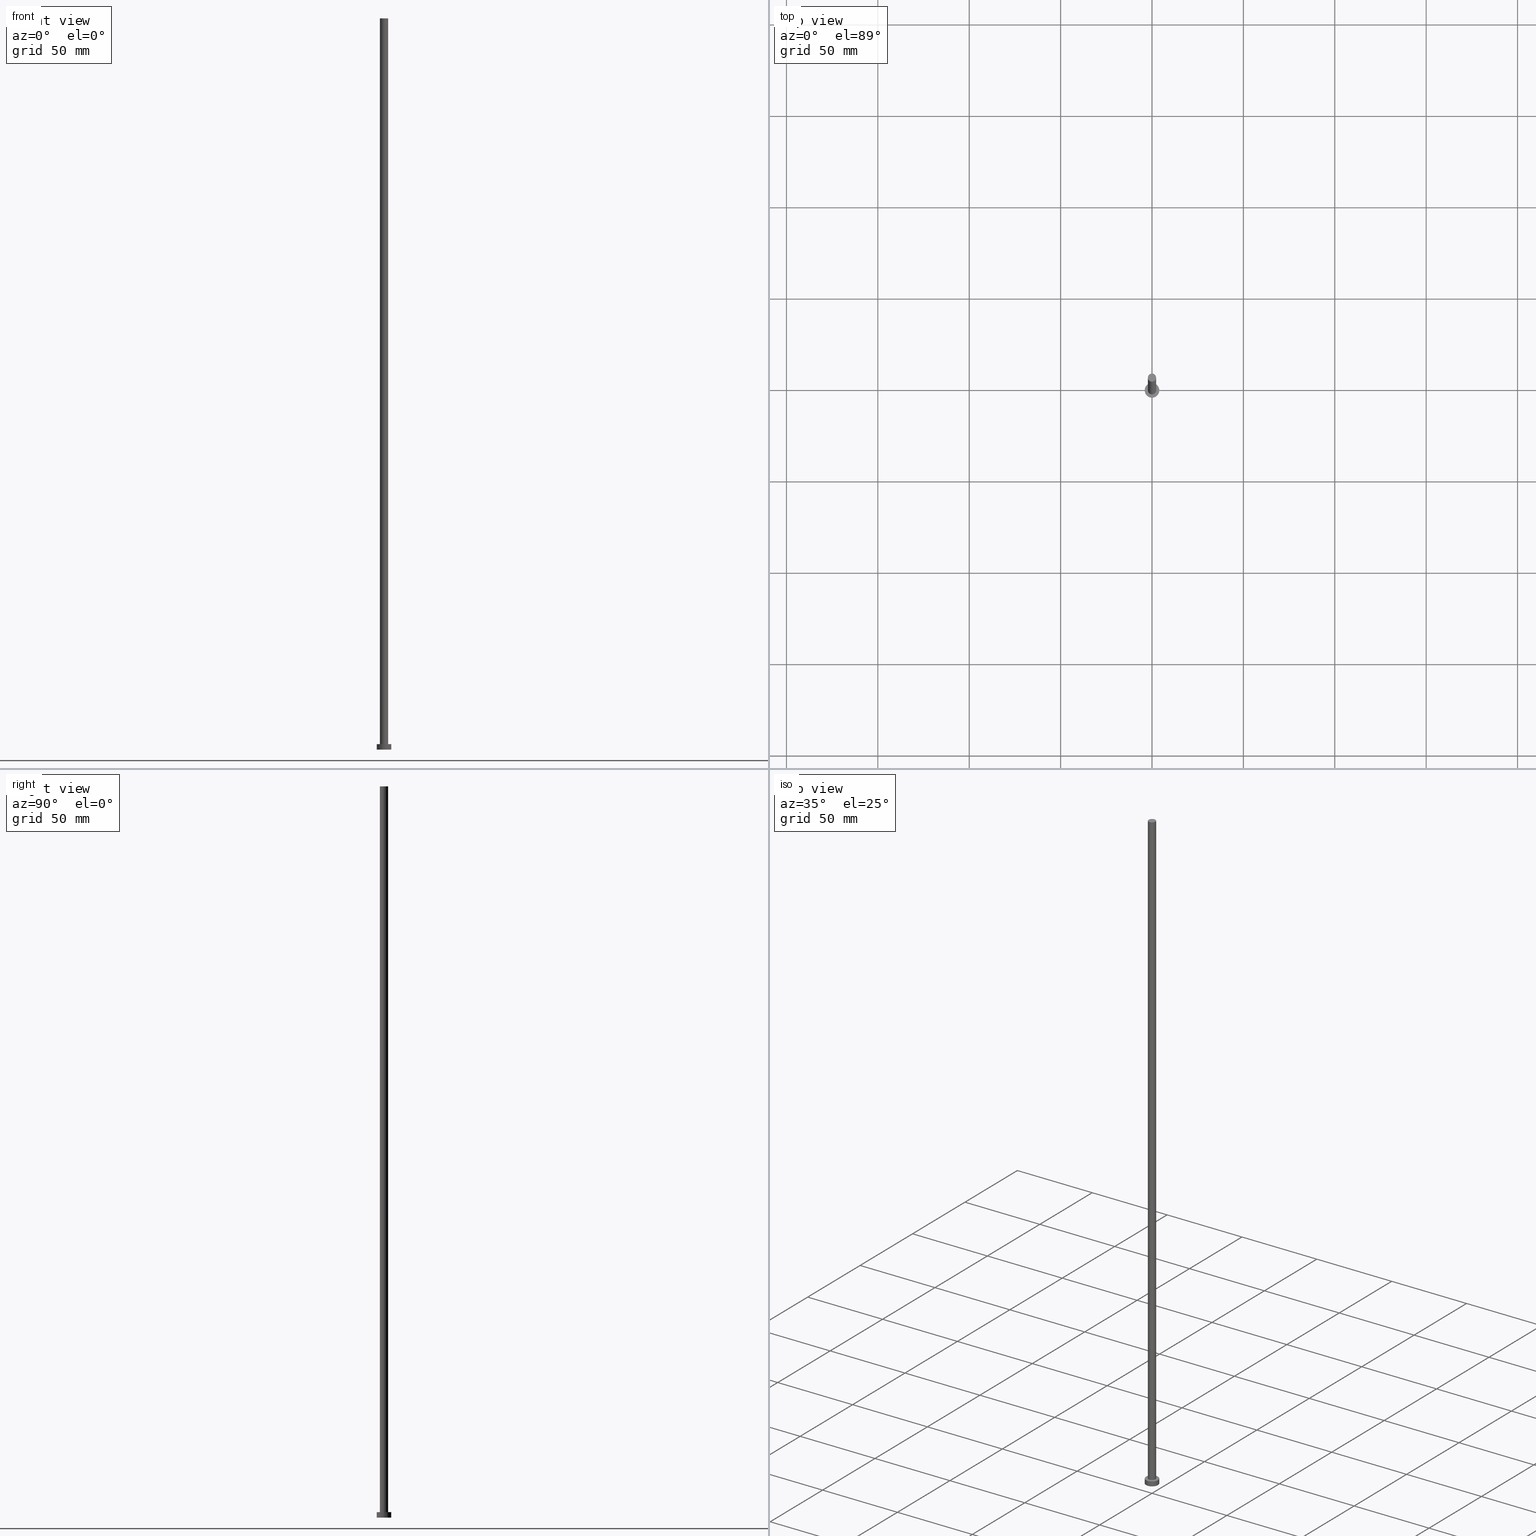
[diagram: canonical four-view strip — front | top / right | iso, engineering-drawing reading convention]
A machine part, canonical four-view strip (front | top / right | iso — engineering-drawing reading convention). The complete STEP part file that produces these views, byte-faithful:
ISO-10303-21;
HEADER;
FILE_DESCRIPTION (( 'STEP AP203' ),
    '1' );
FILE_NAME ('6d35.STEP',
    '2023-02-12T11:52:34',
    ( '' ),
    ( '' ),
    'SwSTEP 2.0',
    'SolidWorks 2019',
    '' );
FILE_SCHEMA (( 'CONFIG_CONTROL_DESIGN' ));
ENDSEC;

DATA;
#1 = DIRECTION ( 'NONE',  ( 1.000000000000000000, 0.000000000000000000, 0.000000000000000000 ) ) ;
#2 = DIRECTION ( 'NONE',  ( -0.000000000000000000, -0.000000000000000000, -1.000000000000000000 ) ) ;
#3 = CARTESIAN_POINT ( 'NONE',  ( 0.000000000000000000, 0.000000000000000000, 3.000000000000000000 ) ) ;
#4 = ORIENTED_EDGE ( 'NONE', *, *, #128, .T. ) ;
#5 = DIRECTION ( 'NONE',  ( 0.000000000000000000, 0.000000000000000000, 1.000000000000000000 ) ) ;
#6 = APPROVAL ( #31, 'NEUR�EN�' ) ;
#7 = ORIENTED_EDGE ( 'NONE', *, *, #54, .T. ) ;
#8 = CIRCLE ( 'NONE', #166, 4.000000000000000000 ) ;
#9 = FACE_OUTER_BOUND ( 'NONE', #85, .T. ) ;
#10 = CIRCLE ( 'NONE', #78, 2.250000000000000000 ) ;
#11 = ORGANIZATION ( 'NEUR�EN�', 'NEUR�EN�', '' ) ;
#12 = COORDINATED_UNIVERSAL_TIME_OFFSET ( 1, 0, .AHEAD. ) ;
#13 = DATE_TIME_ROLE ( 'creation_date' ) ;
#14 = SECURITY_CLASSIFICATION ( '', '', #94 ) ;
#15 = PERSON_AND_ORGANIZATION ( #72, #11 ) ;
#16 = ORIENTED_EDGE ( 'NONE', *, *, #195, .T. ) ;
#17 = FACE_OUTER_BOUND ( 'NONE', #123, .T. ) ;
#18 = VECTOR ( 'NONE', #199, 1000.000000000000000 ) ;
#19 = DIRECTION ( 'NONE',  ( 0.000000000000000000, 0.000000000000000000, 1.000000000000000000 ) ) ;
#20 = EDGE_LOOP ( 'NONE', ( #221, #233, #127, #47 ) ) ;
#21 = DIRECTION ( 'NONE',  ( 0.000000000000000000, 0.000000000000000000, 1.000000000000000000 ) ) ;
#22 = ORIENTED_EDGE ( 'NONE', *, *, #66, .F. ) ;
#23 =( GEOMETRIC_REPRESENTATION_CONTEXT ( 3 ) GLOBAL_UNCERTAINTY_ASSIGNED_CONTEXT ( ( #174 ) ) GLOBAL_UNIT_ASSIGNED_CONTEXT ( ( #242, #73, #151 ) ) REPRESENTATION_CONTEXT ( 'NONE', 'WORKASPACE' ) );
#24 = CARTESIAN_POINT ( 'NONE',  ( 0.000000000000000000, 0.000000000000000000, 0.000000000000000000 ) ) ;
#25 = PRODUCT_DEFINITION ( 'NEZN�M�', '', #28, #134 ) ;
#26 = PERSON_AND_ORGANIZATION ( #72, #11 ) ;
#27 = EDGE_LOOP ( 'NONE', ( #106, #185 ) ) ;
#28 = PRODUCT_DEFINITION_FORMATION_WITH_SPECIFIED_SOURCE ( 'LIBOVOLN�', '', #57, .NOT_KNOWN. ) ;
#29 = PRODUCT_RELATED_PRODUCT_CATEGORY ( 'detail', '', ( #57 ) ) ;
#30 = PERSON_AND_ORGANIZATION ( #72, #11 ) ;
#31 = APPROVAL_STATUS ( 'not_yet_approved' ) ;
#32 = CC_DESIGN_DATE_AND_TIME_ASSIGNMENT ( #132, #13, ( #25 ) ) ;
#33 = AXIS2_PLACEMENT_3D ( 'NONE', #24, #101, #45 ) ;
#34 = APPROVAL_ROLE ( '' ) ;
#35 = PERSON_AND_ORGANIZATION ( #72, #11 ) ;
#36 = APPLICATION_CONTEXT ( 'configuration controlled 3d designs of mechanical parts and assemblies' ) ;
#37 = ORIENTED_EDGE ( 'NONE', *, *, #54, .F. ) ;
#38 = FACE_OUTER_BOUND ( 'NONE', #86, .T. ) ;
#39 = VERTEX_POINT ( 'NONE', #146 ) ;
#40 = CARTESIAN_POINT ( 'NONE',  ( 0.000000000000000000, 0.000000000000000000, 400.0000000000000000 ) ) ;
#41 = VERTEX_POINT ( 'NONE', #201 ) ;
#42 = DIRECTION ( 'NONE',  ( 0.000000000000000000, 0.000000000000000000, 1.000000000000000000 ) ) ;
#43 = CARTESIAN_POINT ( 'NONE',  ( 2.250000000000000000, 2.755455298081544285E-16, 400.0000000000000000 ) ) ;
#44 = CARTESIAN_POINT ( 'NONE',  ( 4.000000000000000000, 4.898587196589412829E-16, 3.000000000000000000 ) ) ;
#45 = DIRECTION ( 'NONE',  ( 1.000000000000000000, 0.000000000000000000, 0.000000000000000000 ) ) ;
#46 = EDGE_CURVE ( 'NONE', #39, #67, #219, .T. ) ;
#47 = ORIENTED_EDGE ( 'NONE', *, *, #117, .F. ) ;
#48 = CARTESIAN_POINT ( 'NONE',  ( 0.000000000000000000, 0.000000000000000000, 0.000000000000000000 ) ) ;
#49 = EDGE_CURVE ( 'NONE', #240, #212, #246, .T. ) ;
#50 = CC_DESIGN_PERSON_AND_ORGANIZATION_ASSIGNMENT ( #206, #135, ( #28 ) ) ;
#51 = PERSON_AND_ORGANIZATION ( #72, #11 ) ;
#52 = VECTOR ( 'NONE', #120, 1000.000000000000000 ) ;
#53 = APPLICATION_CONTEXT ( 'configuration controlled 3d designs of mechanical parts and assemblies' ) ;
#54 = EDGE_CURVE ( 'NONE', #67, #41, #184, .T. ) ;
#55 = CALENDAR_DATE ( 2023, 12, 2 ) ;
#56 = APPROVAL_ROLE ( '' ) ;
#57 = PRODUCT ( '6d35', '6d35', '', ( #124 ) ) ;
#58 = COORDINATED_UNIVERSAL_TIME_OFFSET ( 1, 0, .AHEAD. ) ;
#59 = CIRCLE ( 'NONE', #245, 4.000000000000000000 ) ;
#60 = EDGE_LOOP ( 'NONE', ( #125, #176, #95, #62 ) ) ;
#61 = DIRECTION ( 'NONE',  ( -0.000000000000000000, -0.000000000000000000, -1.000000000000000000 ) ) ;
#62 = ORIENTED_EDGE ( 'NONE', *, *, #49, .T. ) ;
#63 = CARTESIAN_POINT ( 'NONE',  ( 2.250000000000000000, 2.755455298081544285E-16, 400.0000000000000000 ) ) ;
#64 = ORIENTED_EDGE ( 'NONE', *, *, #46, .F. ) ;
#65 = AXIS2_PLACEMENT_3D ( 'NONE', #144, #79, #179 ) ;
#66 = EDGE_CURVE ( 'NONE', #251, #41, #104, .T. ) ;
#67 = VERTEX_POINT ( 'NONE', #149 ) ;
#68 = CARTESIAN_POINT ( 'NONE',  ( 0.000000000000000000, 0.000000000000000000, 3.000000000000000000 ) ) ;
#69 = DIRECTION ( 'NONE',  ( 1.000000000000000000, 0.000000000000000000, 0.000000000000000000 ) ) ;
#70 = EDGE_CURVE ( 'NONE', #165, #147, #116, .T. ) ;
#71 = CARTESIAN_POINT ( 'NONE',  ( 0.000000000000000000, 0.000000000000000000, 3.000000000000000000 ) ) ;
#72 = PERSON ( 'NEUR�EN�', 'NEUR�EN�', 'NEUR�EN�', ('NEUR�EN�'), ('NEUR�EN�'), ('NEUR�EN�') ) ;
#73 =( NAMED_UNIT ( * ) PLANE_ANGLE_UNIT ( ) SI_UNIT ( $, .RADIAN. ) );
#74 = COORDINATED_UNIVERSAL_TIME_OFFSET ( 1, 0, .AHEAD. ) ;
#75 = CC_DESIGN_PERSON_AND_ORGANIZATION_ASSIGNMENT ( #148, #126, ( #57 ) ) ;
#76 = APPROVAL_STATUS ( 'not_yet_approved' ) ;
#77 = AXIS2_PLACEMENT_3D ( 'NONE', #217, #196, #198 ) ;
#78 = AXIS2_PLACEMENT_3D ( 'NONE', #160, #42, #96 ) ;
#79 = DIRECTION ( 'NONE',  ( -0.000000000000000000, -0.000000000000000000, -1.000000000000000000 ) ) ;
#80 = FACE_OUTER_BOUND ( 'NONE', #60, .T. ) ;
#81 = ADVANCED_FACE ( 'NONE', ( #84 ), #248, .T. ) ;
#82 = DIRECTION ( 'NONE',  ( 0.000000000000000000, 0.000000000000000000, 1.000000000000000000 ) ) ;
#83 = CARTESIAN_POINT ( 'NONE',  ( -2.250000000000000000, 0.000000000000000000, 400.0000000000000000 ) ) ;
#84 = FACE_OUTER_BOUND ( 'NONE', #20, .T. ) ;
#85 = EDGE_LOOP ( 'NONE', ( #99, #186, #7, #22 ) ) ;
#86 = EDGE_LOOP ( 'NONE', ( #64, #161, #214, #178 ) ) ;
#87 = CYLINDRICAL_SURFACE ( 'NONE', #194, 4.000000000000000000 ) ;
#88 = AXIS2_PLACEMENT_3D ( 'NONE', #223, #142, #175 ) ;
#89 = DIRECTION ( 'NONE',  ( -1.000000000000000000, 0.000000000000000000, 0.000000000000000000 ) ) ;
#90 = DATE_AND_TIME ( #91, #216 ) ;
#91 = CALENDAR_DATE ( 2023, 12, 2 ) ;
#92 = ADVANCED_FACE ( 'NONE', ( #237, #234 ), #159, .T. ) ;
#93 = APPROVAL_DATE_TIME ( #173, #131 ) ;
#94 = SECURITY_CLASSIFICATION_LEVEL ( 'unclassified' ) ;
#95 = ORIENTED_EDGE ( 'NONE', *, *, #117, .T. ) ;
#96 = DIRECTION ( 'NONE',  ( 1.000000000000000000, 0.000000000000000000, 0.000000000000000000 ) ) ;
#97 = AXIS2_PLACEMENT_3D ( 'NONE', #232, #82, #100 ) ;
#98 = CARTESIAN_POINT ( 'NONE',  ( 0.000000000000000000, 0.000000000000000000, 0.000000000000000000 ) ) ;
#99 = ORIENTED_EDGE ( 'NONE', *, *, #195, .F. ) ;
#100 = DIRECTION ( 'NONE',  ( 1.000000000000000000, 0.000000000000000000, -0.000000000000000000 ) ) ;
#101 = DIRECTION ( 'NONE',  ( 0.000000000000000000, 0.000000000000000000, 1.000000000000000000 ) ) ;
#102 = CC_DESIGN_DATE_AND_TIME_ASSIGNMENT ( #90, #229, ( #14 ) ) ;
#103 = ADVANCED_BREP_SHAPE_REPRESENTATION ( '6d35', ( #226, #200 ), #23 ) ;
#104 = LINE ( 'NONE', #183, #180 ) ;
#105 = CARTESIAN_POINT ( 'NONE',  ( -4.000000000000000000, 0.000000000000000000, 3.000000000000000000 ) ) ;
#106 = ORIENTED_EDGE ( 'NONE', *, *, #49, .F. ) ;
#107 = DIRECTION ( 'NONE',  ( -0.000000000000000000, -0.000000000000000000, -1.000000000000000000 ) ) ;
#108 = LOCAL_TIME ( 12, 52, 34.00000000000000000, #58 ) ;
#109 = DIRECTION ( 'NONE',  ( -0.000000000000000000, -0.000000000000000000, -1.000000000000000000 ) ) ;
#110 = AXIS2_PLACEMENT_3D ( 'NONE', #177, #21, #121 ) ;
#111 = ADVANCED_FACE ( 'NONE', ( #80 ), #163, .T. ) ;
#112 = PERSON_AND_ORGANIZATION_ROLE ( 'creator' ) ;
#113 = AXIS2_PLACEMENT_3D ( 'NONE', #71, #109, #89 ) ;
#114 = CIRCLE ( 'NONE', #77, 4.000000000000000000 ) ;
#115 = DIRECTION ( 'NONE',  ( 0.000000000000000000, 0.000000000000000000, 1.000000000000000000 ) ) ;
#116 = CIRCLE ( 'NONE', #88, 2.250000000000000000 ) ;
#117 = EDGE_CURVE ( 'NONE', #165, #240, #137, .T. ) ;
#118 = CYLINDRICAL_SURFACE ( 'NONE', #113, 4.000000000000000000 ) ;
#119 = LOCAL_TIME ( 12, 52, 34.00000000000000000, #154 ) ;
#120 = DIRECTION ( 'NONE',  ( -0.000000000000000000, -0.000000000000000000, -1.000000000000000000 ) ) ;
#121 = DIRECTION ( 'NONE',  ( 1.000000000000000000, 0.000000000000000000, -0.000000000000000000 ) ) ;
#122 = CC_DESIGN_PERSON_AND_ORGANIZATION_ASSIGNMENT ( #209, #171, ( #28 ) ) ;
#123 = EDGE_LOOP ( 'NONE', ( #138, #37 ) ) ;
#124 = MECHANICAL_CONTEXT ( 'NONE', #36, 'mechanical' ) ;
#125 = ORIENTED_EDGE ( 'NONE', *, *, #190, .F. ) ;
#126 = PERSON_AND_ORGANIZATION_ROLE ( 'design_owner' ) ;
#127 = ORIENTED_EDGE ( 'NONE', *, *, #254, .T. ) ;
#128 = EDGE_CURVE ( 'NONE', #147, #165, #10, .T. ) ;
#129 = APPLICATION_PROTOCOL_DEFINITION ( 'international standard', 'config_control_design', 1994, #36 ) ;
#130 = CARTESIAN_POINT ( 'NONE',  ( 0.000000000000000000, 0.000000000000000000, 3.000000000000000000 ) ) ;
#131 = APPROVAL ( #76, 'NEUR�EN�' ) ;
#132 = DATE_AND_TIME ( #204, #188 ) ;
#133 = AXIS2_PLACEMENT_3D ( 'NONE', #3, #187, #69 ) ;
#134 = DESIGN_CONTEXT ( 'detailed design', #53, 'design' ) ;
#135 = PERSON_AND_ORGANIZATION_ROLE ( 'creator' ) ;
#136 = PRODUCT_DEFINITION_SHAPE ( 'NONE', 'NONE',  #25 ) ;
#137 = LINE ( 'NONE', #193, #230 ) ;
#138 = ORIENTED_EDGE ( 'NONE', *, *, #210, .F. ) ;
#139 = DIRECTION ( 'NONE',  ( -0.000000000000000000, -0.000000000000000000, -1.000000000000000000 ) ) ;
#140 = EDGE_LOOP ( 'NONE', ( #203, #4 ) ) ;
#141 = ADVANCED_FACE ( 'NONE', ( #17 ), #181, .F. ) ;
#142 = DIRECTION ( 'NONE',  ( 0.000000000000000000, 0.000000000000000000, 1.000000000000000000 ) ) ;
#143 = APPROVAL_PERSON_ORGANIZATION ( #30, #131, #56 ) ;
#144 = CARTESIAN_POINT ( 'NONE',  ( 0.000000000000000000, 0.000000000000000000, 400.0000000000000000 ) ) ;
#145 = AXIS2_PLACEMENT_3D ( 'NONE', #218, #182, #162 ) ;
#146 = CARTESIAN_POINT ( 'NONE',  ( 4.000000000000000000, 4.898587196589412829E-16, 3.000000000000000000 ) ) ;
#147 = VERTEX_POINT ( 'NONE', #43 ) ;
#148 = PERSON_AND_ORGANIZATION ( #72, #11 ) ;
#149 = CARTESIAN_POINT ( 'NONE',  ( 4.000000000000000000, 4.898587196589412829E-16, 0.000000000000000000 ) ) ;
#150 = CC_DESIGN_SECURITY_CLASSIFICATION ( #14, ( #28 ) ) ;
#151 =( NAMED_UNIT ( * ) SI_UNIT ( $, .STERADIAN. ) SOLID_ANGLE_UNIT ( ) );
#152 = CC_DESIGN_PERSON_AND_ORGANIZATION_ASSIGNMENT ( #35, #244, ( #14 ) ) ;
#153 = AXIS2_PLACEMENT_3D ( 'NONE', #40, #139, #250 ) ;
#154 = COORDINATED_UNIVERSAL_TIME_OFFSET ( 1, 0, .AHEAD. ) ;
#155 = CC_DESIGN_APPROVAL ( #241, ( #28 ) ) ;
#156 = APPROVAL_ROLE ( '' ) ;
#157 = APPROVAL_DATE_TIME ( #189, #241 ) ;
#158 = APPROVAL_PERSON_ORGANIZATION ( #26, #6, #156 ) ;
#159 = PLANE ( 'NONE',  #97 ) ;
#160 = CARTESIAN_POINT ( 'NONE',  ( 0.000000000000000000, 0.000000000000000000, 400.0000000000000000 ) ) ;
#161 = ORIENTED_EDGE ( 'NONE', *, *, #205, .F. ) ;
#162 = DIRECTION ( 'NONE',  ( 1.000000000000000000, 0.000000000000000000, -0.000000000000000000 ) ) ;
#163 = CYLINDRICAL_SURFACE ( 'NONE', #153, 2.250000000000000000 ) ;
#164 = DIRECTION ( 'NONE',  ( 0.000000000000000000, 0.000000000000000000, 1.000000000000000000 ) ) ;
#165 = VERTEX_POINT ( 'NONE', #83 ) ;
#166 = AXIS2_PLACEMENT_3D ( 'NONE', #220, #19, #1 ) ;
#167 = AXIS2_PLACEMENT_3D ( 'NONE', #68, #164, #238 ) ;
#168 = ADVANCED_FACE ( 'NONE', ( #253 ), #255, .T. ) ;
#169 = CARTESIAN_POINT ( 'NONE',  ( -2.250000000000000000, 0.000000000000000000, 3.000000000000000000 ) ) ;
#170 = CALENDAR_DATE ( 2023, 12, 2 ) ;
#171 = PERSON_AND_ORGANIZATION_ROLE ( 'design_supplier' ) ;
#172 = CC_DESIGN_APPROVAL ( #131, ( #14 ) ) ;
#173 = DATE_AND_TIME ( #170, #108 ) ;
#174 = UNCERTAINTY_MEASURE_WITH_UNIT (LENGTH_MEASURE( 1.000000000000000082E-05 ), #242, 'distance_accuracy_value', 'NONE');
#175 = DIRECTION ( 'NONE',  ( 1.000000000000000000, 0.000000000000000000, 0.000000000000000000 ) ) ;
#176 = ORIENTED_EDGE ( 'NONE', *, *, #70, .F. ) ;
#177 = CARTESIAN_POINT ( 'NONE',  ( 0.000000000000000000, 0.000000000000000000, 0.000000000000000000 ) ) ;
#178 = ORIENTED_EDGE ( 'NONE', *, *, #210, .T. ) ;
#179 = DIRECTION ( 'NONE',  ( -1.000000000000000000, 0.000000000000000000, 0.000000000000000000 ) ) ;
#180 = VECTOR ( 'NONE', #2, 1000.000000000000000 ) ;
#181 = PLANE ( 'NONE',  #110 ) ;
#182 = DIRECTION ( 'NONE',  ( 0.000000000000000000, 0.000000000000000000, 1.000000000000000000 ) ) ;
#183 = CARTESIAN_POINT ( 'NONE',  ( -4.000000000000000000, 0.000000000000000000, 3.000000000000000000 ) ) ;
#184 = CIRCLE ( 'NONE', #33, 4.000000000000000000 ) ;
#185 = ORIENTED_EDGE ( 'NONE', *, *, #254, .F. ) ;
#186 = ORIENTED_EDGE ( 'NONE', *, *, #46, .T. ) ;
#187 = DIRECTION ( 'NONE',  ( 0.000000000000000000, 0.000000000000000000, 1.000000000000000000 ) ) ;
#188 = LOCAL_TIME ( 12, 52, 34.00000000000000000, #243 ) ;
#189 = DATE_AND_TIME ( #225, #207 ) ;
#190 = EDGE_CURVE ( 'NONE', #147, #212, #235, .T. ) ;
#191 = DIRECTION ( 'NONE',  ( 1.000000000000000000, 0.000000000000000000, 0.000000000000000000 ) ) ;
#192 = EDGE_LOOP ( 'NONE', ( #197, #16 ) ) ;
#193 = CARTESIAN_POINT ( 'NONE',  ( -2.250000000000000000, 0.000000000000000000, 400.0000000000000000 ) ) ;
#194 = AXIS2_PLACEMENT_3D ( 'NONE', #130, #107, #224 ) ;
#195 = EDGE_CURVE ( 'NONE', #39, #251, #114, .T. ) ;
#196 = DIRECTION ( 'NONE',  ( 0.000000000000000000, 0.000000000000000000, 1.000000000000000000 ) ) ;
#197 = ORIENTED_EDGE ( 'NONE', *, *, #205, .T. ) ;
#198 = DIRECTION ( 'NONE',  ( 1.000000000000000000, 0.000000000000000000, 0.000000000000000000 ) ) ;
#199 = DIRECTION ( 'NONE',  ( -0.000000000000000000, -0.000000000000000000, -1.000000000000000000 ) ) ;
#200 = AXIS2_PLACEMENT_3D ( 'NONE', #48, #5, #239 ) ;
#201 = CARTESIAN_POINT ( 'NONE',  ( -4.000000000000000000, 0.000000000000000000, 0.000000000000000000 ) ) ;
#202 = APPLICATION_PROTOCOL_DEFINITION ( 'international standard', 'config_control_design', 1994, #53 ) ;
#203 = ORIENTED_EDGE ( 'NONE', *, *, #70, .T. ) ;
#204 = CALENDAR_DATE ( 2023, 12, 2 ) ;
#205 = EDGE_CURVE ( 'NONE', #251, #39, #8, .T. ) ;
#206 = PERSON_AND_ORGANIZATION ( #72, #11 ) ;
#207 = LOCAL_TIME ( 12, 52, 34.00000000000000000, #12 ) ;
#208 = APPROVAL_STATUS ( 'not_yet_approved' ) ;
#209 = PERSON_AND_ORGANIZATION ( #72, #11 ) ;
#210 = EDGE_CURVE ( 'NONE', #41, #67, #59, .T. ) ;
#211 = SHAPE_DEFINITION_REPRESENTATION ( #136, #103 ) ;
#212 = VERTEX_POINT ( 'NONE', #213 ) ;
#213 = CARTESIAN_POINT ( 'NONE',  ( 2.250000000000000000, 2.755455298081544285E-16, 3.000000000000000000 ) ) ;
#214 = ORIENTED_EDGE ( 'NONE', *, *, #66, .T. ) ;
#215 = CC_DESIGN_PERSON_AND_ORGANIZATION_ASSIGNMENT ( #15, #112, ( #25 ) ) ;
#216 = LOCAL_TIME ( 12, 52, 34.00000000000000000, #74 ) ;
#217 = CARTESIAN_POINT ( 'NONE',  ( 0.000000000000000000, 0.000000000000000000, 3.000000000000000000 ) ) ;
#218 = CARTESIAN_POINT ( 'NONE',  ( 0.000000000000000000, 0.000000000000000000, 400.0000000000000000 ) ) ;
#219 = LINE ( 'NONE', #44, #18 ) ;
#220 = CARTESIAN_POINT ( 'NONE',  ( 0.000000000000000000, 0.000000000000000000, 3.000000000000000000 ) ) ;
#221 = ORIENTED_EDGE ( 'NONE', *, *, #128, .F. ) ;
#222 = APPROVAL_PERSON_ORGANIZATION ( #51, #241, #34 ) ;
#223 = CARTESIAN_POINT ( 'NONE',  ( 0.000000000000000000, 0.000000000000000000, 400.0000000000000000 ) ) ;
#224 = DIRECTION ( 'NONE',  ( -1.000000000000000000, 0.000000000000000000, 0.000000000000000000 ) ) ;
#225 = CALENDAR_DATE ( 2023, 12, 2 ) ;
#226 = MANIFOLD_SOLID_BREP ( 'P�idat vysunut�m3', #252 ) ;
#227 = CC_DESIGN_APPROVAL ( #6, ( #25 ) ) ;
#228 = ADVANCED_FACE ( 'NONE', ( #38 ), #118, .T. ) ;
#229 = DATE_TIME_ROLE ( 'classification_date' ) ;
#230 = VECTOR ( 'NONE', #61, 1000.000000000000000 ) ;
#231 = DATE_AND_TIME ( #55, #119 ) ;
#232 = CARTESIAN_POINT ( 'NONE',  ( 0.000000000000000000, 0.000000000000000000, 3.000000000000000000 ) ) ;
#233 = ORIENTED_EDGE ( 'NONE', *, *, #190, .T. ) ;
#234 = FACE_OUTER_BOUND ( 'NONE', #192, .T. ) ;
#235 = LINE ( 'NONE', #63, #52 ) ;
#236 = ADVANCED_FACE ( 'NONE', ( #9 ), #87, .T. ) ;
#237 = FACE_BOUND ( 'NONE', #27, .T. ) ;
#238 = DIRECTION ( 'NONE',  ( 1.000000000000000000, 0.000000000000000000, 0.000000000000000000 ) ) ;
#239 = DIRECTION ( 'NONE',  ( 1.000000000000000000, 0.000000000000000000, 0.000000000000000000 ) ) ;
#240 = VERTEX_POINT ( 'NONE', #169 ) ;
#241 = APPROVAL ( #208, 'NEUR�EN�' ) ;
#242 =( LENGTH_UNIT ( ) NAMED_UNIT ( * ) SI_UNIT ( .MILLI., .METRE. ) );
#243 = COORDINATED_UNIVERSAL_TIME_OFFSET ( 1, 0, .AHEAD. ) ;
#244 = PERSON_AND_ORGANIZATION_ROLE ( 'classification_officer' ) ;
#245 = AXIS2_PLACEMENT_3D ( 'NONE', #98, #115, #191 ) ;
#246 = CIRCLE ( 'NONE', #167, 2.250000000000000000 ) ;
#247 = APPROVAL_DATE_TIME ( #231, #6 ) ;
#248 = CYLINDRICAL_SURFACE ( 'NONE', #65, 2.250000000000000000 ) ;
#249 = CIRCLE ( 'NONE', #133, 2.250000000000000000 ) ;
#250 = DIRECTION ( 'NONE',  ( -1.000000000000000000, 0.000000000000000000, 0.000000000000000000 ) ) ;
#251 = VERTEX_POINT ( 'NONE', #105 ) ;
#252 = CLOSED_SHELL ( 'NONE', ( #81, #236, #228, #92, #141, #111, #168 ) ) ;
#253 = FACE_OUTER_BOUND ( 'NONE', #140, .T. ) ;
#254 = EDGE_CURVE ( 'NONE', #212, #240, #249, .T. ) ;
#255 = PLANE ( 'NONE',  #145 ) ;
ENDSEC;
END-ISO-10303-21;
